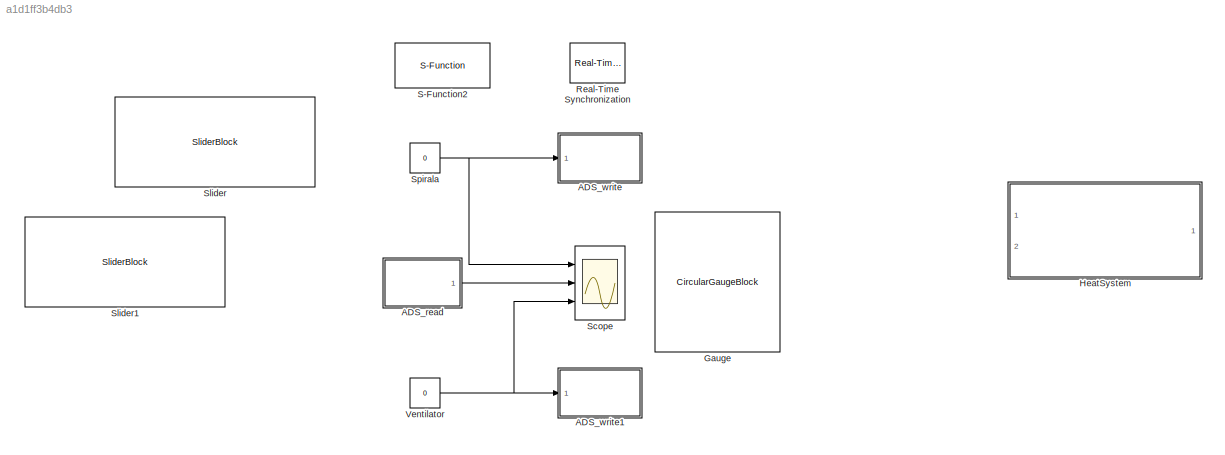
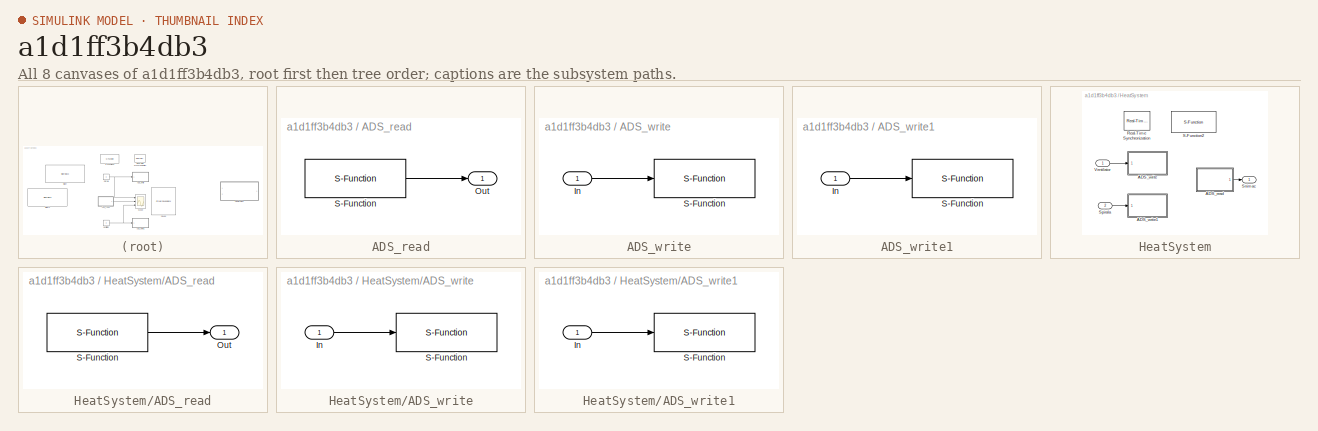
[diagram: thumbnail index - all 8 canvases of the model, root first then tree order]
MODEL slx_a1d1ff3b4db3
KIND model
CONFIG AbsTol = auto
CONFIG EnableMultiTasking = off
CONFIG FixedStep = 1/100
CONFIG MaxStep = auto
CONFIG MinStep = auto
CONFIG RelTol = 1e-3
CONFIG SampleTimeConstraint = Unconstrained
CONFIG Solver = FixedStepDiscrete
CONFIG SolverName = FixedStepDiscrete
CONFIG StartTime = 0.0
CONFIG StopTime = inf
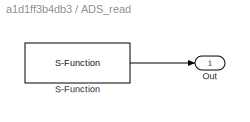
BLOCK [SubSystem] ADS_read
  Ports = [0, 1]
  RequestExecContextInheritance = off
BLOCK [Outport] ADS_read/Out
  IconDisplay = Port number
BLOCK [S-Function] ADS_read/S-Function
  EnableBusSupport = off
  FunctionName = ADS_read_SFUN
  Parameters = net_id,var_name,var_type
  Ports = [0, 1]
  SFcnIsStateOwnerBlock = off
  SFunctionDeploymentMode = off
BLOCK [SubSystem] ADS_write
  Ports = [1]
  RequestExecContextInheritance = off
BLOCK [Inport] ADS_write/In
  IconDisplay = Port number
BLOCK [S-Function] ADS_write/S-Function
  EnableBusSupport = off
  FunctionName = ADS_write_SFUN
  Parameters = net_id,var_name,var_type
  Ports = [1]
  SFcnIsStateOwnerBlock = off
  SFunctionDeploymentMode = off
BLOCK [SubSystem] ADS_write1
  Ports = [1]
  RequestExecContextInheritance = off
BLOCK [Inport] ADS_write1/In
  IconDisplay = Port number
BLOCK [S-Function] ADS_write1/S-Function
  EnableBusSupport = off
  FunctionName = ADS_write_SFUN
  Parameters = net_id,var_name,var_type
  Ports = [1]
  SFcnIsStateOwnerBlock = off
  SFunctionDeploymentMode = off
BLOCK [CircularGaugeBlock] Gauge
  ScaleMax = 30000
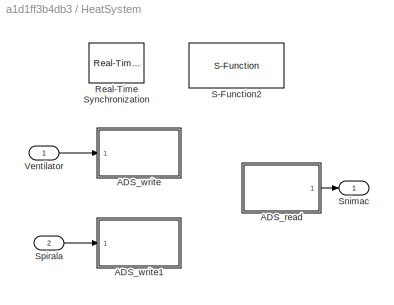
BLOCK [SubSystem] HeatSystem
  Commented = on
  Ports = [2, 1]
  RequestExecContextInheritance = off
BLOCK [SubSystem] HeatSystem/ADS_read
  Ports = [0, 1]
  RequestExecContextInheritance = off
BLOCK [Outport] HeatSystem/ADS_read/Out
  IconDisplay = Port number
BLOCK [S-Function] HeatSystem/ADS_read/S-Function
  EnableBusSupport = off
  FunctionName = ADS_read_SFUN
  Parameters = net_id,var_name,var_type
  Ports = [0, 1]
  SFcnIsStateOwnerBlock = off
  SFunctionDeploymentMode = off
BLOCK [SubSystem] HeatSystem/ADS_write
  Ports = [1]
  RequestExecContextInheritance = off
BLOCK [Inport] HeatSystem/ADS_write/In
  IconDisplay = Port number
BLOCK [S-Function] HeatSystem/ADS_write/S-Function
  EnableBusSupport = off
  FunctionName = ADS_write_SFUN
  Parameters = net_id,var_name,var_type
  Ports = [1]
  SFcnIsStateOwnerBlock = off
  SFunctionDeploymentMode = off
BLOCK [SubSystem] HeatSystem/ADS_write1
  Ports = [1]
  RequestExecContextInheritance = off
BLOCK [Inport] HeatSystem/ADS_write1/In
  IconDisplay = Port number
BLOCK [S-Function] HeatSystem/ADS_write1/S-Function
  EnableBusSupport = off
  FunctionName = ADS_write_SFUN
  Parameters = net_id,var_name,var_type
  Ports = [1]
  SFcnIsStateOwnerBlock = off
  SFunctionDeploymentMode = off
BLOCK [Reference] HeatSystem/Real-Time Synchronization  REF=sldrtlib/Real-Time
Synchronization
  Ports = []
  SourceBlock = sldrtlib/Real-Time\nSynchronization
  SourceProductBaseCode = WT
  SourceProductName = Simulink Desktop Real-Time
  SourceType = Simulink Desktop Real-Time Synchronization
BLOCK [S-Function] HeatSystem/S-Function2
  EnableBusSupport = off
  FunctionName = ADS_setup_SFUN
  Ports = []
  SFcnIsStateOwnerBlock = off
  SFunctionDeploymentMode = off
BLOCK [Outport] HeatSystem/Snimac
  IconDisplay = Port number
BLOCK [Inport] HeatSystem/Spirala
  IconDisplay = Port number
  Port = 2
BLOCK [Inport] HeatSystem/Ventilator
  IconDisplay = Port number
BLOCK [Reference] Real-Time Synchronization  REF=sldrtlib/Real-Time
Synchronization
  Ports = []
  SourceBlock = sldrtlib/Real-Time\nSynchronization
  SourceProductBaseCode = WT
  SourceProductName = Simulink Desktop Real-Time
  SourceType = Simulink Desktop Real-Time Synchronization
BLOCK [S-Function] S-Function2
  EnableBusSupport = off
  FunctionName = ADS_setup_SFUN
  Ports = []
  SFcnIsStateOwnerBlock = off
  SFunctionDeploymentMode = off
BLOCK [Scope] Scope
  Floating = off
  NumInputPorts = 3
  Ports = [3]
  ScopeSpecificationString = Simulink.scopes.TimeScopeBlockCfg('CurrentConfiguration', extmgr.ConfigurationSet(extmgr.Configuration('Core','General UI',true),extmgr.Configuration('Core','Source UI',true),extmgr.Configuration('Sources','WiredSimulink',true,'DataLoggingVariableName','ScopeData1'),extmgr.Configuration('Visuals','Time Domain',true,'SerializedDisplays',{struct('MinYLimReal','-3750.00000','MaxYLimReal','33750.00000...<+1516ch>
BLOCK [SliderBlock] Slider
  ScaleMax = 30000
BLOCK [SliderBlock] Slider1
  ScaleMax = 30000
BLOCK [Constant] Spirala
  Value = 0
BLOCK [Constant] Ventilator
  Value = 0
LINE ADS_read/S-Function:1 -> ADS_read/Out:1
LINE ADS_read:1 -> Scope:2
LINE ADS_write/In:1 -> ADS_write/S-Function:1
LINE ADS_write1/In:1 -> ADS_write1/S-Function:1
LINE HeatSystem/ADS_read/S-Function:1 -> HeatSystem/ADS_read/Out:1
LINE HeatSystem/ADS_read:1 -> HeatSystem/Snimac:1
LINE HeatSystem/ADS_write/In:1 -> HeatSystem/ADS_write/S-Function:1
LINE HeatSystem/ADS_write1/In:1 -> HeatSystem/ADS_write1/S-Function:1
LINE HeatSystem/Spirala:1 -> HeatSystem/ADS_write1:1
LINE HeatSystem/Ventilator:1 -> HeatSystem/ADS_write:1
NET Spirala:1 -> ADS_write:1, Scope:1
NET Ventilator:1 -> ADS_write1:1, Scope:3
note: NET lines group one-source signal fan-out (src -> all destinations, sorted); 1:1 wires keep LINE
